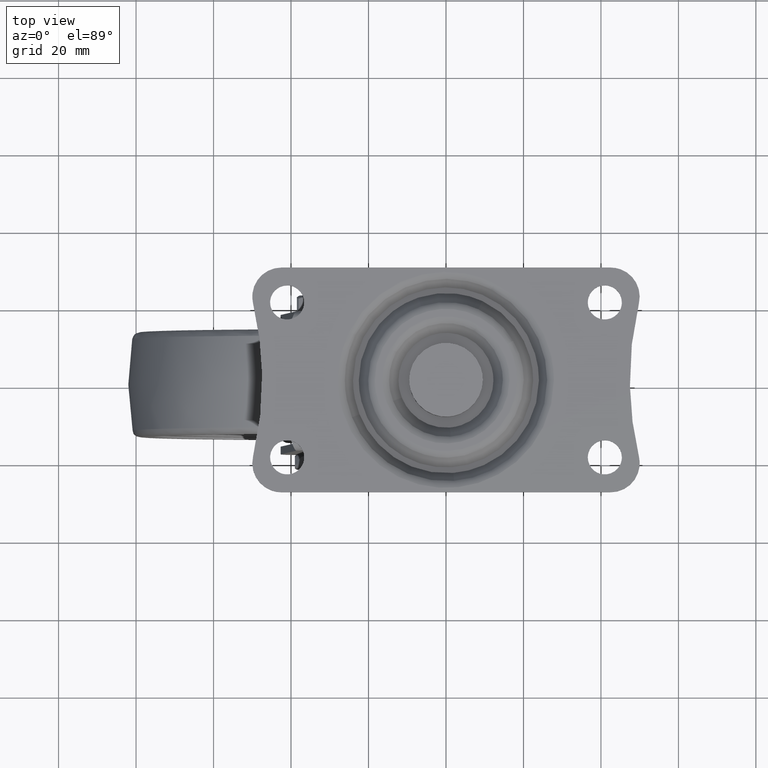
[diagram: clean part render]
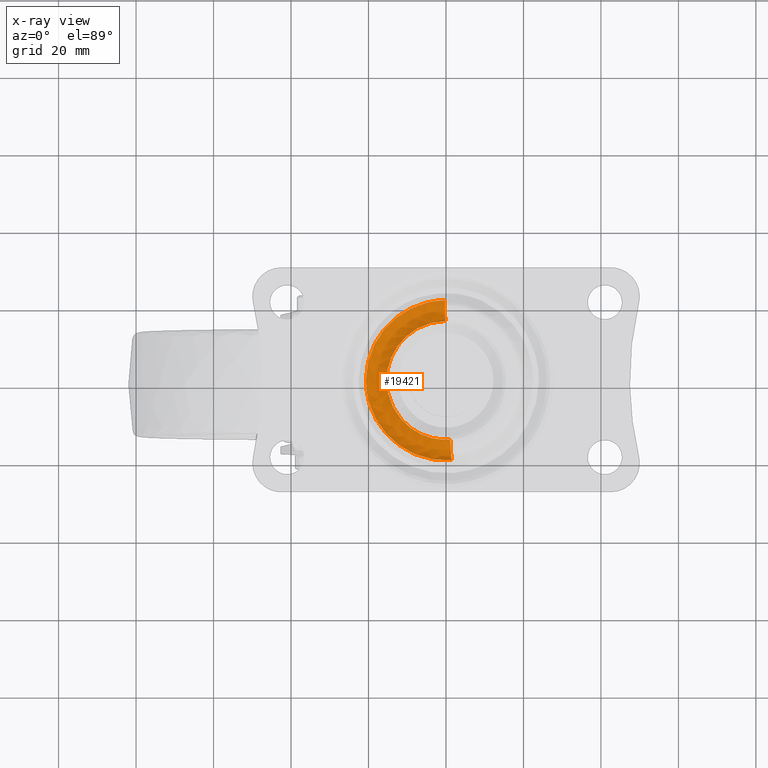
[diagram: x-ray — body ghosted, one internal face saturated and labeled with its STEP entity id]
A machine part, top view, then the same camera in x-ray: the body is ghosted and one INTERNAL B-rep face — a face not visible from any outside direction — is saturated and labeled: STEP entity #19421.
In plain terms, the highlighted face is a freeform B-spline surface patch.
Its self-contained STEP definition (entity closure, byte-faithful):
#19278=CARTESIAN_POINT('',(1.453739557046572,-20.796417757566992,-6.139322464995557));
#19279=CARTESIAN_POINT('',(0.858555589911404,-20.838023118972529,-6.139322464995556));
#19280=CARTESIAN_POINT('',(0.261966325443219,-20.845520475423577,-6.139322464995555));
#19281=CARTESIAN_POINT('',(-20.583554149980340,-21.107486800866791,-6.139322464995557));
#19282=CARTESIAN_POINT('',(-20.845520475423552,-0.261966325443235,-6.139322464995555));
#19283=CARTESIAN_POINT('',(-21.107486800866774,20.583554149980326,-6.139322464995557));
#19284=CARTESIAN_POINT('',(-0.261966325443222,20.845520475423541,-6.139322464995555));
#19285=CARTESIAN_POINT('',(1.388051215476170,-19.856715603575129,-7.799999099999938));
#19286=CARTESIAN_POINT('',(0.819761094312856,-19.896440994680681,-7.799999099999939));
#19287=CARTESIAN_POINT('',(0.250129175258892,-19.903599577305940,-7.799999099999939));
#19288=CARTESIAN_POINT('',(-19.653470402047031,-20.153728752564831,-7.799999099999939));
#19289=CARTESIAN_POINT('',(-19.903599577305915,-0.250129175258908,-7.799999099999939));
#19290=CARTESIAN_POINT('',(-20.153728752564813,19.653470402047013,-7.799999099999939));
#19291=CARTESIAN_POINT('',(-0.250129175258895,19.903599577305901,-7.799999099999939));
#19292=CARTESIAN_POINT('',(1.254913723257076,-17.952122106093238,-7.799999099999940));
#19293=CARTESIAN_POINT('',(0.741132197123242,-17.988037163048112,-7.799999099999939));
#19294=CARTESIAN_POINT('',(0.226137574118026,-17.994509117018790,-7.799999099999939));
#19295=CARTESIAN_POINT('',(-17.768371542900752,-18.220646691136814,-7.799999099999939));
#19296=CARTESIAN_POINT('',(-17.994509117018779,-0.226137574118041,-7.799999099999939));
#19297=CARTESIAN_POINT('',(-18.220646691136800,17.768371542900734,-7.799999099999939));
#19298=CARTESIAN_POINT('',(-0.226137574118028,17.994509117018762,-7.799999099999939));
#19299=CARTESIAN_POINT('',(1.121776241652905,-16.047528760462743,-7.799999099999938));
#19300=CARTESIAN_POINT('',(0.662503306202635,-16.079633483570738,-7.799999099999939));
#19301=CARTESIAN_POINT('',(0.202145974889986,-16.085418808941579,-7.799999099999939));
#19302=CARTESIAN_POINT('',(-15.883272834051576,-16.287564783831563,-7.799999099999939));
#19303=CARTESIAN_POINT('',(-16.085418808941569,-0.202145974890002,-7.799999099999939));
#19304=CARTESIAN_POINT('',(-16.287564783831552,15.883272834051558,-7.799999099999939));
#19305=CARTESIAN_POINT('',(-0.202145974889988,16.085418808941558,-7.799999099999939));
#19306=CARTESIAN_POINT('',(1.056087897288850,-15.107826566506374,-6.139322662726215));
#19307=CARTESIAN_POINT('',(0.623708808954199,-15.138051319234425,-6.139322662726213));
#19308=CARTESIAN_POINT('',(0.190308824202238,-15.143497870765076,-6.139322662726214));
#19309=CARTESIAN_POINT('',(-14.953189046562827,-15.333806694967317,-6.139322662726213));
#19310=CARTESIAN_POINT('',(-15.143497870765065,-0.190308824202253,-6.139322662726214));
#19311=CARTESIAN_POINT('',(-15.333806694967301,14.953189046562814,-6.139322662726213));
#19312=CARTESIAN_POINT('',(-0.190308824202240,15.143497870765055,-6.139322662726214));
#19320=(BOUNDED_SURFACE()B_SPLINE_SURFACE(2,2,((#19278,#19285,#19292,#19299,#19306),(#19279,#19286,#19293,#19300,#19307),(#19280,#19287,#19294,#19301,#19308),(#19281,#19288,#19295,#19302,#19309),(#19282,#19289,#19296,#19303,#19310),(#19283,#19290,#19297,#19304,#19311),(#19284,#19291,#19298,#19305,#19312)),.UNSPECIFIED.,.F.,.F.,.U.)B_SPLINE_SURFACE_WITH_KNOTS((3,2,2,3),(3,2,3),(0.0,1.381627337270152,35.922343709618033,70.463060081965892),(0.0,3.539812451431735,7.079624663421512),.UNSPECIFIED.)GEOMETRIC_REPRESENTATION_ITEM()RATIONAL_B_SPLINE_SURFACE(((0.942288544577696,0.829321365561694,0.977505821353428,0.829321375585269,0.942288529294920),(0.952678682589938,0.838465871768706,0.988284282420452,0.838465881902806,0.952678667138647),(0.963972309927555,0.848405551604222,1.0,0.848405561858458,0.963972294293094),(0.681631357225834,0.599913318735659,0.707106781186548,0.599913325986499,0.681631346170601),(0.963972309927555,0.848405551604222,1.0,0.848405561858458,0.963972294293094),(0.681631357225834,0.599913318735659,0.707106781186548,0.599913325986499,0.681631346170601),(0.963972309927555,0.848405551604222,1.0,0.848405561858458,0.963972294293094)))REPRESENTATION_ITEM('')SURFACE());
#19321=CARTESIAN_POINT('',(-15.309223952143149,-1.421085E-014,-6.400002000000000));
#19322=VERTEX_POINT('',#19321);
#19323=CARTESIAN_POINT('',(1.067561965633328,-15.271956308463141,-6.400002000990588));
#19324=VERTEX_POINT('',#19323);
#19325=CARTESIAN_POINT('',(-15.309223952143149,-1.421085E-014,-6.400002000000000));
#19326=CARTESIAN_POINT('',(-15.309223952143151,-15.309223952143165,-6.400002000000001));
#19327=CARTESIAN_POINT('',(0.0,-15.309223952143171,-6.400002000000000));
#19328=CARTESIAN_POINT('',(0.534431473203871,-15.309223952143160,-6.400002000000000));
#19329=CARTESIAN_POINT('',(1.067561965633327,-15.271956308463146,-6.400002000990588));
#19337=(BOUNDED_CURVE()B_SPLINE_CURVE(2,(#19325,#19326,#19327,#19328,#19329),.UNSPECIFIED.,.F.,.U.)B_SPLINE_CURVE_WITH_KNOTS((3,2,3),(0.500000000000000,0.750000000000000,0.762166313471746),.UNSPECIFIED.)CURVE()GEOMETRIC_REPRESENTATION_ITEM()RATIONAL_B_SPLINE_CURVE((1.0,0.707106781186548,1.0,0.985746277144668,0.972879876372515))REPRESENTATION_ITEM(''));
#19338=EDGE_CURVE('',#19322,#19324,#19337,.T.);
#19339=ORIENTED_EDGE('',*,*,#19338,.F.);
#19340=CARTESIAN_POINT('',(-0.192376318821012,15.308015200377140,-6.400002000287275));
#19341=VERTEX_POINT('',#19340);
#19342=CARTESIAN_POINT('',(-0.192376318821012,15.308015200377143,-6.400002000287275));
#19343=CARTESIAN_POINT('',(-15.309223952143142,15.118041290260086,-6.400002000000001));
#19344=CARTESIAN_POINT('',(-15.309223952143149,-1.421085E-014,-6.400002000000000));
#19352=(BOUNDED_CURVE()B_SPLINE_CURVE(2,(#19342,#19343,#19344),.UNSPECIFIED.,.F.,.U.)B_SPLINE_CURVE_WITH_KNOTS((3,3),(0.252215704079482,0.500000000000000),.UNSPECIFIED.)CURVE()GEOMETRIC_REPRESENTATION_ITEM()RATIONAL_B_SPLINE_CURVE((0.994854295641226,0.709702639985658,1.0))REPRESENTATION_ITEM(''));
#19353=EDGE_CURVE('',#19341,#19322,#19352,.T.);
#19354=ORIENTED_EDGE('',*,*,#19353,.F.);
#19355=CARTESIAN_POINT('',(-0.259898829679691,20.681003033600099,-6.400002000368794));
#19356=VERTEX_POINT('',#19355);
#19357=CARTESIAN_POINT('',(-0.259898829679691,20.681003033600096,-6.400002000368794));
#19358=CARTESIAN_POINT('',(-0.247601757951352,19.702484685362951,-7.799999099999939));
#19359=CARTESIAN_POINT('',(-0.226137574118024,17.994509117018762,-7.799999099999939));
#19360=CARTESIAN_POINT('',(-0.204673390283105,16.286533548548121,-7.799999099999938));
#19361=CARTESIAN_POINT('',(-0.192376318821012,15.308015200377145,-6.400002000287274));
#19369=(BOUNDED_CURVE()B_SPLINE_CURVE(2,(#19357,#19358,#19359,#19360,#19361),.UNSPECIFIED.,.F.,.U.)B_SPLINE_CURVE_WITH_KNOTS((3,2,3),(-3.602274214966706,-2.0,-0.397725784931016),.UNSPECIFIED.)CURVE()GEOMETRIC_REPRESENTATION_ITEM()RATIONAL_B_SPLINE_CURVE((0.945183186141318,0.862174352477315,1.0,0.862174352468517,0.945183186151915))REPRESENTATION_ITEM(''));
#19370=EDGE_CURVE('',#19356,#19341,#19369,.T.);
#19371=ORIENTED_EDGE('',*,*,#19370,.F.);
#19372=CARTESIAN_POINT('',(-20.682636047856899,-1.421085E-014,-6.400002000000000));
#19373=VERTEX_POINT('',#19372);
#19374=CARTESIAN_POINT('',(-20.682636047856899,-1.421085E-014,-6.400002000000000));
#19375=CARTESIAN_POINT('',(-20.682636047856896,20.424349838769611,-6.400002000000001));
#19376=CARTESIAN_POINT('',(-0.259898829679691,20.681003033600103,-6.400002000368794));
#19384=(BOUNDED_CURVE()B_SPLINE_CURVE(2,(#19374,#19375,#19376),.UNSPECIFIED.,.F.,.U.)B_SPLINE_CURVE_WITH_KNOTS((3,3),(0.0,0.247784295918111),.UNSPECIFIED.)CURVE()GEOMETRIC_REPRESENTATION_ITEM()RATIONAL_B_SPLINE_CURVE((1.0,0.709702639988478,0.994854295635687))REPRESENTATION_ITEM(''));
#19385=EDGE_CURVE('',#19373,#19356,#19384,.T.);
#19386=ORIENTED_EDGE('',*,*,#19385,.F.);
#19387=CARTESIAN_POINT('',(1.442267462860625,-20.632287765726531,-6.400002000205253));
#19388=VERTEX_POINT('',#19387);
#19389=CARTESIAN_POINT('',(1.442267462860625,-20.632287765726534,-6.400002000205254));
#19390=CARTESIAN_POINT('',(0.722012538491614,-20.682636047856910,-6.400001999999999));
#19391=CARTESIAN_POINT('',(0.0,-20.682636047856910,-6.400002000000000));
#19392=CARTESIAN_POINT('',(-20.682636047856899,-20.682636047856914,-6.400002000000001));
#19393=CARTESIAN_POINT('',(-20.682636047856899,-1.421085E-014,-6.400002000000000));
#19401=(BOUNDED_CURVE()B_SPLINE_CURVE(2,(#19389,#19390,#19391,#19392,#19393),.UNSPECIFIED.,.F.,.U.)B_SPLINE_CURVE_WITH_KNOTS((3,2,3),(0.737833686533432,0.750000000000000,1.0),.UNSPECIFIED.)CURVE()GEOMETRIC_REPRESENTATION_ITEM()RATIONAL_B_SPLINE_CURVE((0.972879876383466,0.985746277150734,1.0,0.707106781186548,1.0))REPRESENTATION_ITEM(''));
#19402=EDGE_CURVE('',#19388,#19373,#19401,.T.);
#19403=ORIENTED_EDGE('',*,*,#19402,.F.);
#19404=CARTESIAN_POINT('',(1.442267462860625,-20.632287765726538,-6.400002000205253));
#19405=CARTESIAN_POINT('',(1.374026808624061,-19.656074372739944,-7.799999099999938));
#19406=CARTESIAN_POINT('',(1.254914714024050,-17.952122036835267,-7.799999099999939));
#19407=CARTESIAN_POINT('',(1.135802619508998,-16.248169702145958,-7.799999099999940));
#19408=CARTESIAN_POINT('',(1.067561965633328,-15.271956308463144,-6.400002000990588));
#19416=(BOUNDED_CURVE()B_SPLINE_CURVE(2,(#19404,#19405,#19406,#19407,#19408),.UNSPECIFIED.,.F.,.U.)B_SPLINE_CURVE_WITH_KNOTS((3,2,3),(-3.602274215171895,-2.0,-0.397725785813441),.UNSPECIFIED.)CURVE()GEOMETRIC_REPRESENTATION_ITEM()RATIONAL_B_SPLINE_CURVE((0.923922047287940,0.842780430826104,0.977505800795127,0.842780430908955,0.923922047188143))REPRESENTATION_ITEM(''));
#19417=EDGE_CURVE('',#19388,#19324,#19416,.T.);
#19418=ORIENTED_EDGE('',*,*,#19417,.T.);
#19419=EDGE_LOOP('',(#19339,#19354,#19371,#19386,#19403,#19418));
#19420=FACE_OUTER_BOUND('',#19419,.T.);
#19421=ADVANCED_FACE('',(#19420),#19320,.F.);